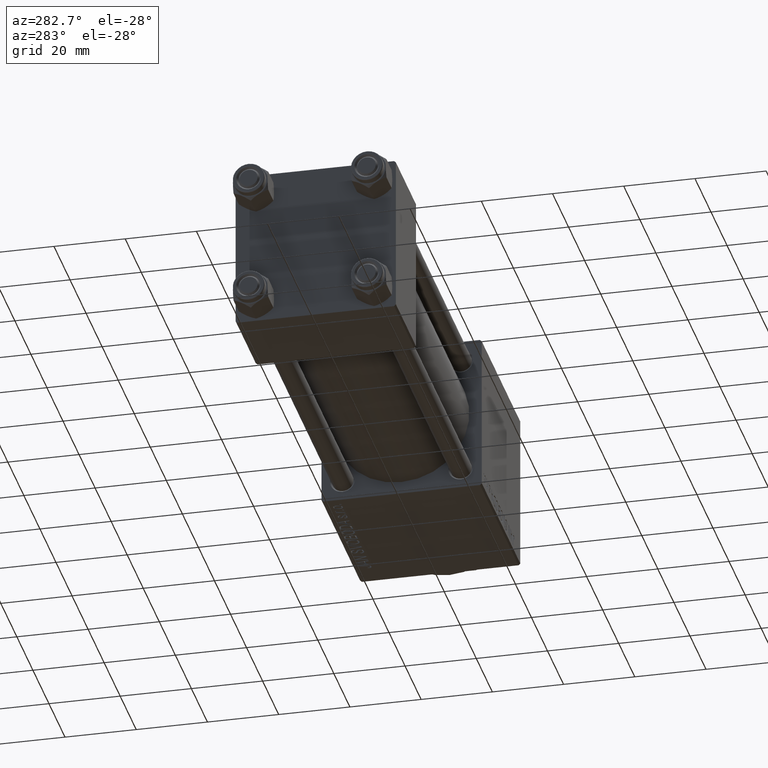
[diagram: clean part render]
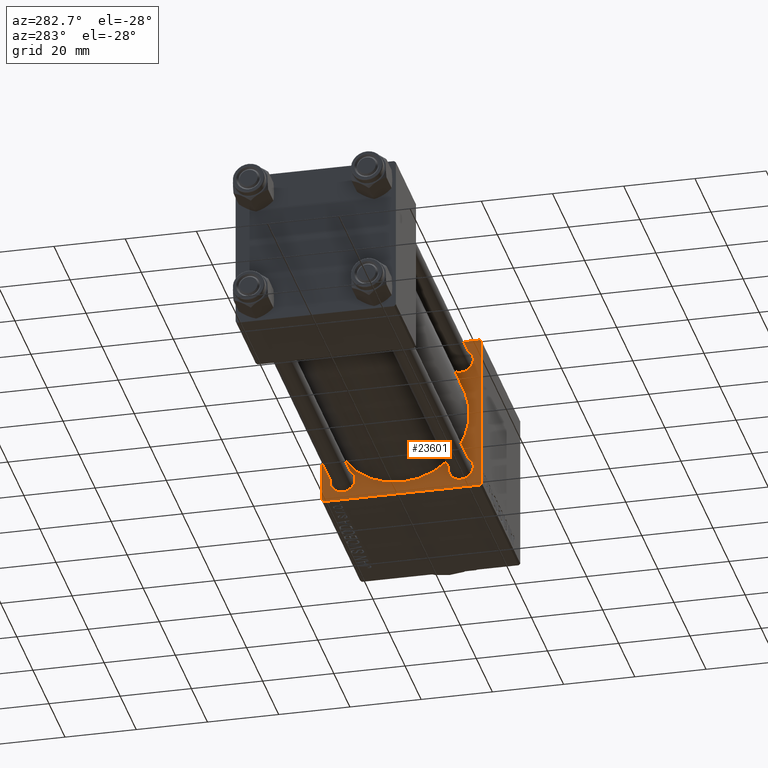
[diagram: same view with one face highlighted and labeled with its STEP entity id]
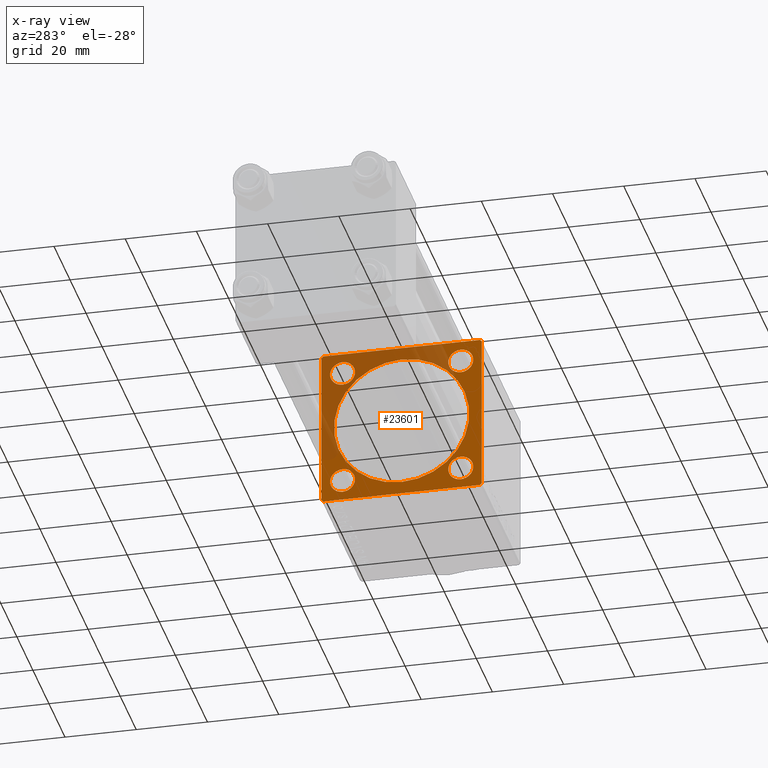
[diagram: x-ray of the same camera — body ghosted, the highlighted face saturated]
A machine part, auxiliary view. The second image highlights one B-rep face of the part: STEP entity #23601.
The next image is the same camera in x-ray: the body ghosted, the highlighted face saturated — about 39% of this face is hidden behind the body in this view.
In plain terms, the highlighted planar face has unit normal (-1, 0, 0).
Its self-contained STEP definition (entity closure, byte-faithful):
#200 = DIRECTION ( 'NONE',  ( 0.000000000000000000, 0.000000000000000000, 1.000000000000000000 ) ) ;
#421 = CARTESIAN_POINT ( 'NONE',  ( 107.0000000000000142, 22.50000000000000355, -22.49999999999999645 ) ) ;
#762 = CIRCLE ( 'NONE', #31572, 3.500000000000010214 ) ;
#782 = CARTESIAN_POINT ( 'NONE',  ( 107.0000000000000142, 16.59999999999999787, 20.10000000000001208 ) ) ;
#956 = CARTESIAN_POINT ( 'NONE',  ( 107.0000000000000142, -16.59999999999999076, -16.60000000000000853 ) ) ;
#1111 = EDGE_CURVE ( 'NONE', #4293, #38733, #1448, .T. ) ;
#1307 = ORIENTED_EDGE ( 'NONE', *, *, #24487, .T. ) ;
#1448 = CIRCLE ( 'NONE', #39533, 3.500000000000013323 ) ;
#1703 = CARTESIAN_POINT ( 'NONE',  ( 107.0000000000000142, 16.59999999999999787, -16.60000000000000497 ) ) ;
#2351 = VECTOR ( 'NONE', #10913, 1000.000000000000000 ) ;
#2472 = CIRCLE ( 'NONE', #20314, 19.00000000000000000 ) ;
#2500 = CARTESIAN_POINT ( 'NONE',  ( 107.0000000000000142, 16.59999999999999787, -16.60000000000000497 ) ) ;
#3233 = EDGE_CURVE ( 'NONE', #30914, #42484, #8215, .T. ) ;
#3668 = EDGE_CURVE ( 'NONE', #20680, #11819, #25077, .T. ) ;
#3744 = VERTEX_POINT ( 'NONE', #37486 ) ;
#3905 = FACE_BOUND ( 'NONE', #7243, .T. ) ;
#3925 = VECTOR ( 'NONE', #18255, 1000.000000000000114 ) ;
#3979 = ORIENTED_EDGE ( 'NONE', *, *, #20694, .F. ) ;
#4293 = VERTEX_POINT ( 'NONE', #30760 ) ;
#4375 = ORIENTED_EDGE ( 'NONE', *, *, #3233, .F. ) ;
#4461 = EDGE_CURVE ( 'NONE', #30914, #9851, #10168, .T. ) ;
#5540 = EDGE_CURVE ( 'NONE', #13550, #27186, #762, .T. ) ;
#5782 = CARTESIAN_POINT ( 'NONE',  ( 107.0000000000000142, 22.25000000000029843, -22.24999999999968026 ) ) ;
#6393 = VECTOR ( 'NONE', #37864, 1000.000000000000000 ) ;
#6539 = CIRCLE ( 'NONE', #41380, 3.500000000000010214 ) ;
#6587 = CARTESIAN_POINT ( 'NONE',  ( 107.0000000000000142, 16.59999999999999787, 13.09999999999999432 ) ) ;
#6634 = ORIENTED_EDGE ( 'NONE', *, *, #47196, .T. ) ;
#6925 = DIRECTION ( 'NONE',  ( 0.000000000000000000, 0.000000000000000000, 1.000000000000000000 ) ) ;
#7196 = VERTEX_POINT ( 'NONE', #39369 ) ;
#7243 = EDGE_LOOP ( 'NONE', ( #29232, #37142 ) ) ;
#7603 = AXIS2_PLACEMENT_3D ( 'NONE', #1703, #14150, #49877 ) ;
#7933 = DIRECTION ( 'NONE',  ( 1.000000000000000000, -0.000000000000000000, 0.000000000000000000 ) ) ;
#8208 = EDGE_CURVE ( 'NONE', #40815, #8674, #46102, .T. ) ;
#8215 = LINE ( 'NONE', #19133, #46074 ) ;
#8418 = CIRCLE ( 'NONE', #44050, 19.00000000000000000 ) ;
#8674 = VERTEX_POINT ( 'NONE', #32704 ) ;
#8822 = VECTOR ( 'NONE', #21268, 999.9999999999998863 ) ;
#9332 = LINE ( 'NONE', #21258, #33452 ) ;
#9714 = EDGE_CURVE ( 'NONE', #35268, #49350, #50220, .T. ) ;
#9851 = VERTEX_POINT ( 'NONE', #39271 ) ;
#10168 = LINE ( 'NONE', #34004, #2351 ) ;
#10273 = CARTESIAN_POINT ( 'NONE',  ( 107.0000000000000142, -22.00000000000001066, -22.50000000000000000 ) ) ;
#10913 = DIRECTION ( 'NONE',  ( 0.000000000000000000, 0.7071067811865378028, -0.7071067811865573427 ) ) ;
#11359 = VECTOR ( 'NONE', #15914, 1000.000000000000000 ) ;
#11475 = DIRECTION ( 'NONE',  ( 1.000000000000000000, -0.000000000000000000, 0.000000000000000000 ) ) ;
#11557 = VECTOR ( 'NONE', #43876, 1000.000000000000000 ) ;
#11819 = VERTEX_POINT ( 'NONE', #17952 ) ;
#11993 = ORIENTED_EDGE ( 'NONE', *, *, #1111, .T. ) ;
#12096 = ORIENTED_EDGE ( 'NONE', *, *, #25433, .T. ) ;
#12954 = AXIS2_PLACEMENT_3D ( 'NONE', #41973, #14166, #22957 ) ;
#13097 = EDGE_CURVE ( 'NONE', #38733, #4293, #49988, .T. ) ;
#13550 = VERTEX_POINT ( 'NONE', #782 ) ;
#14150 = DIRECTION ( 'NONE',  ( 1.000000000000000000, -0.000000000000000000, 0.000000000000000000 ) ) ;
#14166 = DIRECTION ( 'NONE',  ( -1.000000000000000000, 0.000000000000000000, -0.000000000000000000 ) ) ;
#14590 = CARTESIAN_POINT ( 'NONE',  ( 107.0000000000000142, -16.59999999999999076, 16.60000000000000853 ) ) ;
#14679 = DIRECTION ( 'NONE',  ( 1.000000000000000000, -0.000000000000000000, 0.000000000000000000 ) ) ;
#15285 = ORIENTED_EDGE ( 'NONE', *, *, #37147, .T. ) ;
#15662 = LINE ( 'NONE', #421, #11359 ) ;
#15914 = DIRECTION ( 'NONE',  ( 0.000000000000000000, -1.000000000000000000, -7.709882115452476934E-17 ) ) ;
#16112 = ORIENTED_EDGE ( 'NONE', *, *, #4461, .T. ) ;
#16987 = LINE ( 'NONE', #24117, #11557 ) ;
#17665 = CARTESIAN_POINT ( 'NONE',  ( 107.0000000000000142, -21.99999999999998224, 22.49999999999999289 ) ) ;
#17952 = CARTESIAN_POINT ( 'NONE',  ( 107.0000000000000142, 21.99999999999998934, -22.49999999999999645 ) ) ;
#17959 = DIRECTION ( 'NONE',  ( 1.000000000000000000, -0.000000000000000000, 0.000000000000000000 ) ) ;
#18255 = DIRECTION ( 'NONE',  ( -0.000000000000000000, 0.7071067811865474617, 0.7071067811865474617 ) ) ;
#18992 = LINE ( 'NONE', #33728, #3925 ) ;
#19000 = EDGE_CURVE ( 'NONE', #44487, #42484, #18992, .T. ) ;
#19023 = ORIENTED_EDGE ( 'NONE', *, *, #19000, .T. ) ;
#19133 = CARTESIAN_POINT ( 'NONE',  ( 107.0000000000000142, 22.50000000000000355, 22.50000000000000355 ) ) ;
#19193 = DIRECTION ( 'NONE',  ( 0.000000000000000000, 0.000000000000000000, 1.000000000000000000 ) ) ;
#19381 = AXIS2_PLACEMENT_3D ( 'NONE', #26223, #11475, #6925 ) ;
#19602 = DIRECTION ( 'NONE',  ( 1.000000000000000000, 0.000000000000000000, 0.000000000000000000 ) ) ;
#19685 = DIRECTION ( 'NONE',  ( 0.000000000000000000, 0.000000000000000000, -1.000000000000000000 ) ) ;
#20314 = AXIS2_PLACEMENT_3D ( 'NONE', #49869, #34646, #19685 ) ;
#20680 = VERTEX_POINT ( 'NONE', #41674 ) ;
#20694 = EDGE_CURVE ( 'NONE', #44487, #26368, #26462, .T. ) ;
#21258 = CARTESIAN_POINT ( 'NONE',  ( 107.0000000000000142, 22.50000000000000355, 22.50000000000000355 ) ) ;
#21268 = DIRECTION ( 'NONE',  ( -0.000000000000000000, -0.7071067811865376918, -0.7071067811865574537 ) ) ;
#21524 = FACE_BOUND ( 'NONE', #24694, .T. ) ;
#22957 = DIRECTION ( 'NONE',  ( -0.000000000000000000, 0.000000000000000000, 1.000000000000000000 ) ) ;
#23062 = DIRECTION ( 'NONE',  ( 1.000000000000000000, -0.000000000000000000, 0.000000000000000000 ) ) ;
#23124 = ORIENTED_EDGE ( 'NONE', *, *, #46783, .T. ) ;
#23184 = CARTESIAN_POINT ( 'NONE',  ( 107.0000000000000142, -22.49999999999999645, 21.99999999999999289 ) ) ;
#23601 = ADVANCED_FACE ( 'NONE', ( #42223, #21524, #40792, #3905, #36988, #48901 ), #25587, .T. ) ;
#24117 = CARTESIAN_POINT ( 'NONE',  ( 107.0000000000000142, -22.25000000000016698, -22.24999999999985789 ) ) ;
#24487 = EDGE_CURVE ( 'NONE', #11819, #38875, #15662, .T. ) ;
#24694 = EDGE_LOOP ( 'NONE', ( #34624, #23124 ) ) ;
#25077 = LINE ( 'NONE', #5782, #8822 ) ;
#25242 = ORIENTED_EDGE ( 'NONE', *, *, #9714, .T. ) ;
#25433 = EDGE_CURVE ( 'NONE', #7196, #3744, #2472, .T. ) ;
#25587 = PLANE ( 'NONE',  #12954 ) ;
#25995 = EDGE_CURVE ( 'NONE', #8674, #40815, #6539, .T. ) ;
#26223 = CARTESIAN_POINT ( 'NONE',  ( 107.0000000000000142, -16.59999999999999076, -16.60000000000000853 ) ) ;
#26368 = VERTEX_POINT ( 'NONE', #32599 ) ;
#26462 = LINE ( 'NONE', #33819, #6393 ) ;
#27186 = VERTEX_POINT ( 'NONE', #6587 ) ;
#27319 = CARTESIAN_POINT ( 'NONE',  ( 107.0000000000000142, 16.59999999999999787, 16.60000000000000497 ) ) ;
#28508 = ORIENTED_EDGE ( 'NONE', *, *, #13097, .T. ) ;
#29232 = ORIENTED_EDGE ( 'NONE', *, *, #25995, .T. ) ;
#29490 = CIRCLE ( 'NONE', #7603, 3.500000000000010214 ) ;
#29592 = ORIENTED_EDGE ( 'NONE', *, *, #42895, .T. ) ;
#30347 = EDGE_LOOP ( 'NONE', ( #11993, #28508 ) ) ;
#30760 = CARTESIAN_POINT ( 'NONE',  ( 107.0000000000000142, -16.59999999999999076, 20.10000000000001918 ) ) ;
#30914 = VERTEX_POINT ( 'NONE', #45600 ) ;
#31042 = CARTESIAN_POINT ( 'NONE',  ( 107.0000000000000142, -16.59999999999999076, 16.60000000000000853 ) ) ;
#31572 = AXIS2_PLACEMENT_3D ( 'NONE', #45344, #17959, #37729 ) ;
#31642 = CARTESIAN_POINT ( 'NONE',  ( 107.0000000000000142, 16.59999999999999787, -20.10000000000001208 ) ) ;
#31929 = AXIS2_PLACEMENT_3D ( 'NONE', #27319, #42780, #19193 ) ;
#32431 = DIRECTION ( 'NONE',  ( 0.000000000000000000, 0.000000000000000000, -1.000000000000000000 ) ) ;
#32599 = CARTESIAN_POINT ( 'NONE',  ( 107.0000000000000142, -22.49999999999999645, -22.00000000000000711 ) ) ;
#32704 = CARTESIAN_POINT ( 'NONE',  ( 107.0000000000000142, -16.59999999999999076, -13.09999999999999787 ) ) ;
#33452 = VECTOR ( 'NONE', #32431, 1000.000000000000000 ) ;
#33638 = EDGE_LOOP ( 'NONE', ( #25242, #6634 ) ) ;
#33728 = CARTESIAN_POINT ( 'NONE',  ( 107.0000000000000142, -22.24999999999999289, 22.24999999999999289 ) ) ;
#33819 = CARTESIAN_POINT ( 'NONE',  ( 107.0000000000000142, -22.49999999999999645, 22.49999999999999289 ) ) ;
#33867 = DIRECTION ( 'NONE',  ( 0.000000000000000000, 0.000000000000000000, 1.000000000000000000 ) ) ;
#34004 = CARTESIAN_POINT ( 'NONE',  ( 107.0000000000000142, 22.25000000000031974, 22.24999999999970512 ) ) ;
#34464 = EDGE_CURVE ( 'NONE', #9851, #20680, #9332, .T. ) ;
#34624 = ORIENTED_EDGE ( 'NONE', *, *, #5540, .T. ) ;
#34646 = DIRECTION ( 'NONE',  ( 1.000000000000000000, 0.000000000000000000, 0.000000000000000000 ) ) ;
#35088 = DIRECTION ( 'NONE',  ( 0.000000000000000000, 0.000000000000000000, 1.000000000000000000 ) ) ;
#35268 = VERTEX_POINT ( 'NONE', #40339 ) ;
#35621 = DIRECTION ( 'NONE',  ( 0.000000000000000000, -1.000000000000000000, -2.312964634635742957E-16 ) ) ;
#36988 = FACE_BOUND ( 'NONE', #49717, .T. ) ;
#37142 = ORIENTED_EDGE ( 'NONE', *, *, #8208, .T. ) ;
#37147 = EDGE_CURVE ( 'NONE', #3744, #7196, #8418, .T. ) ;
#37486 = CARTESIAN_POINT ( 'NONE',  ( 107.0000000000000142, -2.602085213965210642E-15, 19.00000000000000000 ) ) ;
#37729 = DIRECTION ( 'NONE',  ( 0.000000000000000000, 0.000000000000000000, 1.000000000000000000 ) ) ;
#37847 = ORIENTED_EDGE ( 'NONE', *, *, #34464, .T. ) ;
#37864 = DIRECTION ( 'NONE',  ( 0.000000000000000000, 0.000000000000000000, -1.000000000000000000 ) ) ;
#38462 = CARTESIAN_POINT ( 'NONE',  ( 107.0000000000000142, -16.59999999999999076, 13.09999999999999432 ) ) ;
#38733 = VERTEX_POINT ( 'NONE', #38462 ) ;
#38875 = VERTEX_POINT ( 'NONE', #10273 ) ;
#39133 = CARTESIAN_POINT ( 'NONE',  ( 107.0000000000000142, -2.602085213965210642E-15, 0.000000000000000000 ) ) ;
#39271 = CARTESIAN_POINT ( 'NONE',  ( 107.0000000000000142, 22.50000000000000355, 22.00000000000000355 ) ) ;
#39369 = CARTESIAN_POINT ( 'NONE',  ( 107.0000000000000142, -2.752562955852396712E-16, -19.00000000000000000 ) ) ;
#39533 = AXIS2_PLACEMENT_3D ( 'NONE', #31042, #7933, #35088 ) ;
#40339 = CARTESIAN_POINT ( 'NONE',  ( 107.0000000000000142, 16.59999999999999787, -13.09999999999999432 ) ) ;
#40792 = FACE_BOUND ( 'NONE', #33638, .T. ) ;
#40815 = VERTEX_POINT ( 'NONE', #48841 ) ;
#41220 = DIRECTION ( 'NONE',  ( 1.000000000000000000, -0.000000000000000000, 0.000000000000000000 ) ) ;
#41327 = AXIS2_PLACEMENT_3D ( 'NONE', #2500, #14679, #46122 ) ;
#41380 = AXIS2_PLACEMENT_3D ( 'NONE', #956, #23062, #200 ) ;
#41674 = CARTESIAN_POINT ( 'NONE',  ( 107.0000000000000142, 22.50000000000000355, -21.99999999999995381 ) ) ;
#41973 = CARTESIAN_POINT ( 'NONE',  ( 107.0000000000000142, 0.000000000000000000, 0.000000000000000000 ) ) ;
#42223 = FACE_BOUND ( 'NONE', #30347, .T. ) ;
#42434 = CIRCLE ( 'NONE', #31929, 3.500000000000010214 ) ;
#42484 = VERTEX_POINT ( 'NONE', #17665 ) ;
#42780 = DIRECTION ( 'NONE',  ( 1.000000000000000000, -0.000000000000000000, 0.000000000000000000 ) ) ;
#42895 = EDGE_CURVE ( 'NONE', #38875, #26368, #16987, .T. ) ;
#42944 = DIRECTION ( 'NONE',  ( 0.000000000000000000, 0.000000000000000000, -1.000000000000000000 ) ) ;
#43524 = AXIS2_PLACEMENT_3D ( 'NONE', #14590, #41220, #33867 ) ;
#43876 = DIRECTION ( 'NONE',  ( 0.000000000000000000, -0.7071067811865426878, 0.7071067811865524577 ) ) ;
#44050 = AXIS2_PLACEMENT_3D ( 'NONE', #39133, #19602, #42944 ) ;
#44487 = VERTEX_POINT ( 'NONE', #23184 ) ;
#45344 = CARTESIAN_POINT ( 'NONE',  ( 107.0000000000000142, 16.59999999999999787, 16.60000000000000497 ) ) ;
#45600 = CARTESIAN_POINT ( 'NONE',  ( 107.0000000000000142, 22.00000000000001776, 22.50000000000000355 ) ) ;
#46074 = VECTOR ( 'NONE', #35621, 1000.000000000000000 ) ;
#46102 = CIRCLE ( 'NONE', #19381, 3.500000000000010214 ) ;
#46122 = DIRECTION ( 'NONE',  ( 0.000000000000000000, 0.000000000000000000, 1.000000000000000000 ) ) ;
#46783 = EDGE_CURVE ( 'NONE', #27186, #13550, #42434, .T. ) ;
#47196 = EDGE_CURVE ( 'NONE', #49350, #35268, #29490, .T. ) ;
#47240 = ORIENTED_EDGE ( 'NONE', *, *, #3668, .T. ) ;
#48841 = CARTESIAN_POINT ( 'NONE',  ( 107.0000000000000142, -16.59999999999999076, -20.10000000000001563 ) ) ;
#48901 = FACE_OUTER_BOUND ( 'NONE', #49551, .T. ) ;
#49350 = VERTEX_POINT ( 'NONE', #31642 ) ;
#49551 = EDGE_LOOP ( 'NONE', ( #1307, #29592, #3979, #19023, #4375, #16112, #37847, #47240 ) ) ;
#49717 = EDGE_LOOP ( 'NONE', ( #15285, #12096 ) ) ;
#49869 = CARTESIAN_POINT ( 'NONE',  ( 107.0000000000000142, -2.602085213965210642E-15, 0.000000000000000000 ) ) ;
#49877 = DIRECTION ( 'NONE',  ( 0.000000000000000000, 0.000000000000000000, 1.000000000000000000 ) ) ;
#49988 = CIRCLE ( 'NONE', #43524, 3.500000000000013323 ) ;
#50220 = CIRCLE ( 'NONE', #41327, 3.500000000000010214 ) ;